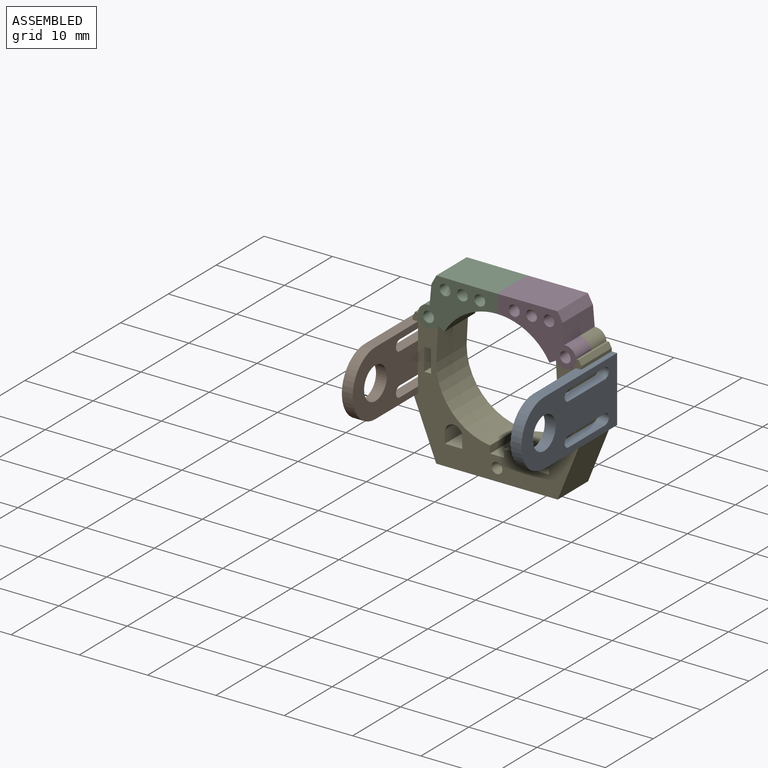
[diagram: assembled view]
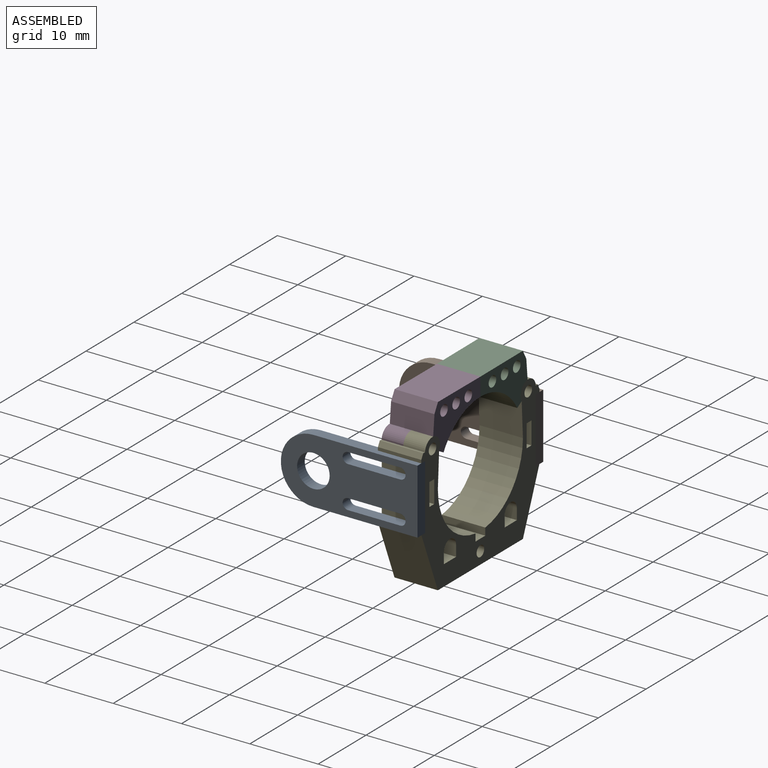
[diagram: assembled view, second angle]
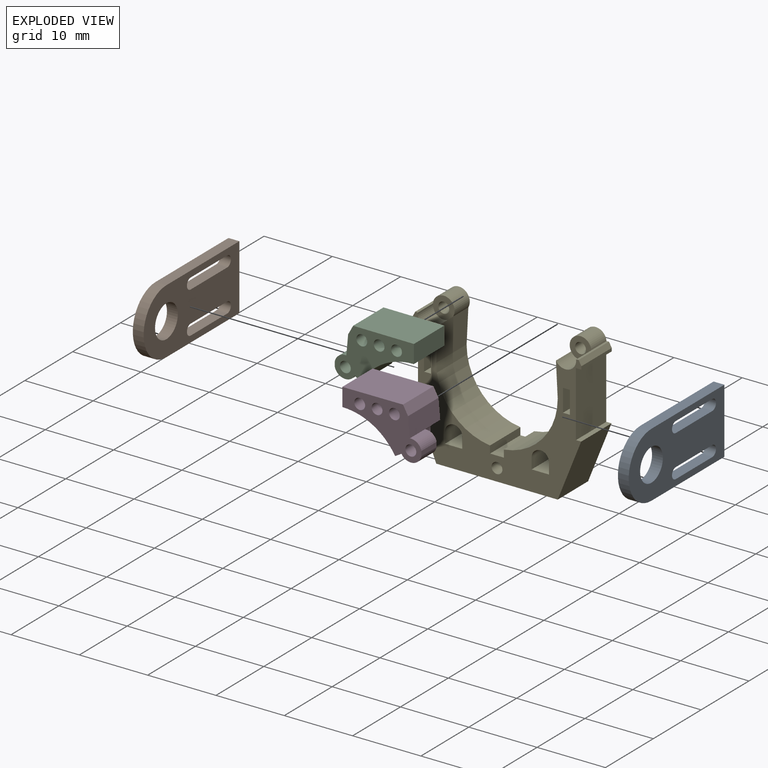
[diagram: exploded view]
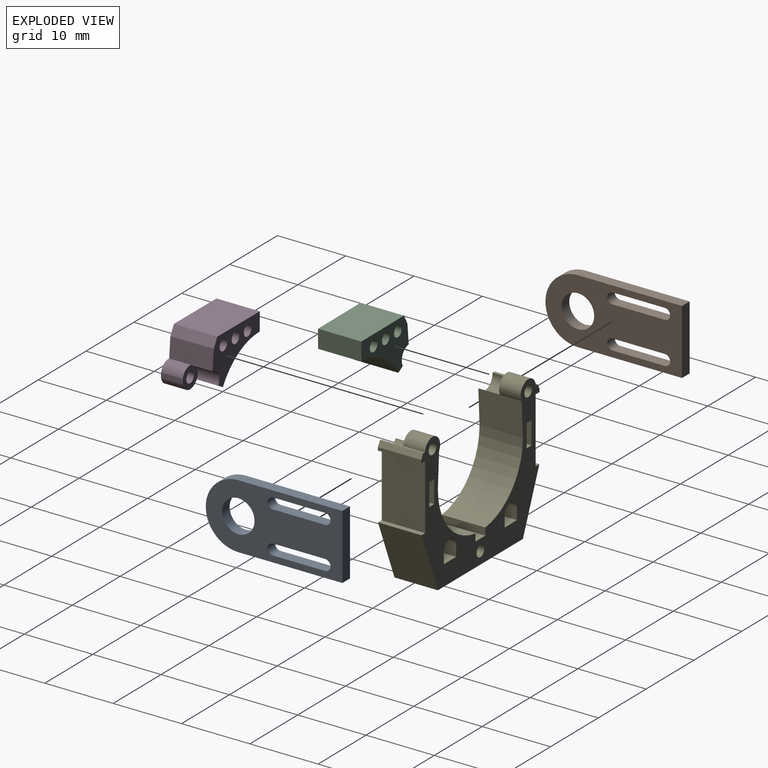
[diagram: exploded view, second angle]
ASSEMBLY  parts=5 mates=8
PART A: 15 faces, bbox 20x1.6x9.5 mm
  f0: cylinder r=0.79mm len=1.59mm, axis (0,1,0), area 4mm2, adj f1,f12,f13,f14
  f1: plane 7.62x1.59mm, normal (0,0,1), area 12.1mm2, adj f0,f2,f13,f14
  f2: cylinder r=0.79mm len=1.59mm, axis (0,1,0), area 4mm2, adj f1,f12,f13,f14
  f3: cylinder r=0.79mm len=1.59mm, axis (0,1,0), area 4mm2, adj f4,f9,f13,f14
  f4: plane 7.62x1.59mm, normal (0,0,1), area 12.1mm2, adj f3,f5,f13,f14
  f5: cylinder r=0.79mm len=1.59mm, axis (0,1,0), area 4mm2, adj f4,f9,f13,f14
  f6: plane 15.24x1.59mm, normal (0,0,-1), area 24.2mm2, adj f7,f11,f13,f14
  f7: cylinder r=4.76mm len=9.53mm, axis (0,1,0), area 23.8mm2, adj f6,f8,f13,f14
  f8: plane 15.24x1.59mm, normal (0,0,1), area 24.2mm2, adj f7,f11,f13,f14
  f9: plane 7.62x1.59mm, normal (0,0,-1), area 12.1mm2, adj f3,f5,f13,f14
  f10: cylinder r=2.38mm len=4.76mm, axis (0,1,0), area 23.8mm2, adj f13,f14
  f11: plane 9.53x1.59mm, normal (-1,0,0), area 15.1mm2, adj f6,f8,f13,f14
  f12: plane 7.62x1.59mm, normal (0,0,-1), area 12.1mm2, adj f0,f2,f13,f14
  f13: plane 20x9.53mm, normal (0,-1,0), area 134.8mm2, adj f0,f1,f2,f3,f4,f5,f6,f7
  f14: plane 20x9.53mm, normal (0,1,0), area 134.8mm2, adj f0,f1,f2,f3,f4,f5,f6,f7
PART B: same geometry as A
PART C: 17 faces, bbox 11.6x6.4x7.4 mm
  f0: plane 3.18x0.7mm, normal (-1,0,0), area 2.2mm2, adj f9,f12,f14,f15
  f1: cylinder r=0.79mm len=3.18mm, axis (0,1,0), area 15.8mm2, adj f14,f15
  f2: plane 9.87x7.11mm, normal (0,1,0), area 35mm2, adj f3,f4,f5,f6,f7,f8,f10,f11
  f3: plane 6.35x0.94mm, normal (-0.5,0,-0.87), area 6.9mm2, adj f2,f4,f12,f14,f16
  f4: cylinder r=8.89mm len=7.7mm, axis (0,1,0), area 59.1mm2, adj f2,f3,f5,f14
  f5: plane 6.35x2.67mm, normal (1,0,0), area 16.9mm2, adj f2,f4,f6,f14
  f6: plane 8.89x6.35mm, normal (0,0,1), area 56.5mm2, adj f2,f5,f7,f14
  f7: plane 6.35x1.34mm, normal (-0.88,0,0.48), area 9.7mm2, adj f2,f6,f8,f14
  f8: plane 6.35x2.86mm, normal (-1,0,0.09), area 18.2mm2, adj f2,f7,f9,f14,f16
  f9: cylinder r=1.59mm len=3.18mm, axis (0,1,0), area 7.2mm2, adj f0,f8,f14,f15
  f10: cylinder r=0.79mm len=6.35mm, axis (0,1,0), area 31.7mm2, adj f2,f14
  f11: cylinder r=0.79mm len=6.35mm, axis (0,1,0), area 31.7mm2, adj f2,f14
  f12: cylinder r=1.59mm len=3.18mm, axis (0,1,0), area 12.1mm2, adj f0,f3,f14,f15
  f13: cylinder r=0.79mm len=6.35mm, axis (0,1,0), area 31.7mm2, adj f2,f14
  f14: plane 11.56x7.37mm, normal (0,-1,0), area 41mm2, adj f0,f1,f3,f4,f5,f6,f7,f8
  f15: plane 3.18x3.14mm, normal (0,1,0), area 5.9mm2, adj f0,f1,f9,f12,f16
  f16: cylinder r=1.59mm len=3.18mm, axis (0,1,0), area 10.1mm2, adj f2,f3,f8,f15
PART D: 17 faces, bbox 11.6x6.4x7.4 mm
  f0: cylinder r=1.59mm len=3.18mm, axis (0,1,0), area 12.1mm2, adj f1,f5,f14,f16
  f1: plane 3.18x0.7mm, normal (1,0,0), area 2.2mm2, adj f0,f2,f14,f16
  f2: cylinder r=1.59mm len=3.18mm, axis (0,1,0), area 7.2mm2, adj f1,f6,f14,f16
  f3: cylinder r=0.79mm len=3.18mm, axis (0,1,0), area 15.8mm2, adj f14,f16
  f4: plane 9.87x7.11mm, normal (0,1,0), area 35mm2, adj f5,f6,f7,f8,f9,f10,f11,f12
  f5: plane 6.35x0.94mm, normal (0.5,0,-0.87), area 6.9mm2, adj f0,f4,f10,f14,f15
  f6: plane 6.35x2.86mm, normal (1,0,0.09), area 18.2mm2, adj f2,f4,f7,f14,f15
  f7: plane 6.35x1.34mm, normal (0.88,0,0.48), area 9.7mm2, adj f4,f6,f8,f14
  f8: plane 8.89x6.35mm, normal (0,0,1), area 56.5mm2, adj f4,f7,f9,f14
  f9: plane 6.35x2.67mm, normal (-1,0,0), area 16.9mm2, adj f4,f8,f10,f14
  f10: cylinder r=8.89mm len=7.7mm, axis (0,1,0), area 59.1mm2, adj f4,f5,f9,f14
  f11: cylinder r=0.79mm len=6.35mm, axis (0,1,0), area 31.7mm2, adj f4,f14
  f12: cylinder r=0.79mm len=6.35mm, axis (0,1,0), area 31.7mm2, adj f4,f14
  f13: cylinder r=0.79mm len=6.35mm, axis (0,1,0), area 31.7mm2, adj f4,f14
  f14: plane 11.56x7.37mm, normal (0,-1,0), area 41mm2, adj f0,f1,f2,f3,f5,f6,f7,f8
  f15: cylinder r=1.59mm len=3.18mm, axis (0,1,0), area 10.1mm2, adj f4,f5,f6,f16
  f16: plane 3.18x3.14mm, normal (0,1,0), area 5.9mm2, adj f0,f1,f2,f3,f15
PART E: 49 faces, bbox 24.7x6.4x20.7 mm
  f0: plane 24.7x19.29mm, normal (0,-1,0), area 170.4mm2, adj f5,f6,f7,f8,f9,f10,f11,f12
  f1: cylinder r=1.59mm len=3.18mm, axis (0,1,0), area 18mm2, adj f24,f25,f44,f48
  f2: cylinder r=1.59mm len=3.18mm, axis (0,1,0), area 18mm2, adj f31,f32,f44,f45
  f3: cylinder r=0.79mm len=3.18mm, axis (0,1,0), area 15.8mm2, adj f44,f48
  f4: cylinder r=0.79mm len=3.18mm, axis (0,1,0), area 15.8mm2, adj f44,f45
  f5: plane 6.35x1.6mm, normal (-1,0,0), area 10.2mm2, adj f0,f6,f38,f44
  f6: plane 6.35x2.54mm, normal (0,0,1), area 16.1mm2, adj f0,f5,f7,f44
  f7: plane 6.35x1.6mm, normal (1,0,0), area 10.2mm2, adj f0,f6,f38,f44
  f8: plane 6.35x1.02mm, normal (0,0,1), area 6.5mm2, adj f0,f9,f39,f44
  f9: plane 6.35x3.3mm, normal (1,0,0), area 21mm2, adj f0,f8,f10,f44
  f10: plane 6.35x1.02mm, normal (0,0,-1), area 6.5mm2, adj f0,f9,f39,f44
  f11: plane 6.35x1.02mm, normal (0,0,-1), area 6.5mm2, adj f0,f12,f41,f44
  f12: plane 6.35x3.3mm, normal (-1,0,0), area 21mm2, adj f0,f11,f13,f44
  f13: plane 6.35x1.02mm, normal (0,0,1), area 6.5mm2, adj f0,f12,f41,f44
  f14: plane 6.35x1.6mm, normal (-1,0,0), area 10.2mm2, adj f0,f15,f42,f44
  f15: plane 6.35x2.54mm, normal (0,0,1), area 16.1mm2, adj f0,f14,f16,f44
  f16: plane 6.35x1.6mm, normal (1,0,0), area 10.2mm2, adj f0,f15,f42,f44
  f17: plane 17.78x6.35mm, normal (0,0,-1), area 112.9mm2, adj f0,f18,f43,f44
  f18: plane 8.58x6.35mm, normal (0.93,0,-0.37), area 58.7mm2, adj f0,f17,f19,f44
  f19: plane 6.35x0.76mm, normal (0,0,1), area 4.8mm2, adj f0,f18,f20,f44
  f20: plane 9.53x6.35mm, normal (1,0,0), area 60.5mm2, adj f0,f19,f21,f44
  f21: plane 6.35x0.79mm, normal (0,0,-1), area 5mm2, adj f0,f20,f22,f44
  f22: plane 6.35x0.46mm, normal (1,0,0), area 2.9mm2, adj f0,f21,f23,f44
  f23: plane 6.35x0.73mm, normal (0.88,0,0.48), area 5.3mm2, adj f0,f22,f24,f44
  f24: plane 6.35x0.36mm, normal (-0.09,0,1), area 2.3mm2, adj f0,f1,f23,f44,f47
  f25: plane 6.35x4.98mm, normal (-1,0,-0.05), area 31.7mm2, adj f0,f1,f26,f44,f47
  f26: cylinder r=8.89mm len=8.83mm, axis (0,1,0), area 82.2mm2, adj f0,f25,f27,f44
  f27: plane 6.35x1.07mm, normal (-1,0,0), area 6.8mm2, adj f0,f26,f28,f44
  f28: plane 6.35x2.03mm, normal (0,0,1), area 12.9mm2, adj f0,f27,f29,f44
  f29: plane 6.35x1.07mm, normal (1,0,0), area 6.8mm2, adj f0,f28,f30,f44
  f30: cylinder r=8.89mm len=8.83mm, axis (0,1,0), area 82.2mm2, adj f0,f29,f31,f44
  f31: plane 6.35x4.98mm, normal (1,0,-0.05), area 31.7mm2, adj f0,f2,f30,f44,f46
  f32: plane 6.35x0.36mm, normal (0.09,0,1), area 2.3mm2, adj f0,f2,f33,f44,f46
  f33: plane 6.35x0.73mm, normal (-0.88,0,0.48), area 5.3mm2, adj f0,f32,f34,f44
  f34: plane 6.35x0.46mm, normal (-1,0,0), area 2.9mm2, adj f0,f33,f35,f44
  f35: plane 6.35x0.79mm, normal (0,0,-1), area 5mm2, adj f0,f34,f36,f44
  f36: plane 9.53x6.35mm, normal (-1,0,0), area 60.5mm2, adj f0,f35,f37,f44
  f37: plane 6.35x0.76mm, normal (0,0,1), area 4.8mm2, adj f0,f36,f43,f44
  f38: cylinder r=1.27mm len=6.35mm, axis (0,1,0), area 25.3mm2, adj f0,f5,f7,f44
  f39: plane 6.35x3.3mm, normal (-1,0,0), area 21mm2, adj f0,f8,f10,f44
  f40: cylinder r=0.79mm len=6.35mm, axis (0,1,0), area 31.7mm2, adj f0,f44
  f41: plane 6.35x3.3mm, normal (1,0,0), area 21mm2, adj f0,f11,f13,f44
  f42: cylinder r=1.27mm len=6.35mm, axis (0,1,0), area 25.3mm2, adj f0,f14,f16,f44
  f43: plane 8.58x6.35mm, normal (-0.93,0,-0.37), area 58.7mm2, adj f0,f17,f37,f44
  f44: plane 24.7x20.71mm, normal (0,1,0), area 182.2mm2, adj f1,f2,f3,f4,f5,f6,f7,f8
  f45: plane 3.18x3.18mm, normal (0,-1,0), area 5.9mm2, adj f2,f4,f46
  f46: cylinder r=1.59mm len=3.18mm, axis (0,-1,0), area 13.6mm2, adj f0,f31,f32,f45
  f47: cylinder r=1.59mm len=3.18mm, axis (0,-1,0), area 13.6mm2, adj f0,f24,f25,f48
  f48: plane 3.18x3.18mm, normal (0,-1,0), area 5.9mm2, adj f1,f3,f47
PLACE A rot(axis=(0.71,-0.71,0),180deg) t=(-44.86,-219.61,34.59)mm
PLACE B rot(axis=(0,0,-1),90deg) t=(-67.97,-219.61,33.78)mm
PLACE C rot(axis=(0,1,0),0.2deg) t=(42.92,-45.75,33.76)mm
PLACE D rot(axis=(0,-1,0),0.2deg) t=(42.96,-45.75,34.51)mm
PLACE E t=(42.94,-45.75,34.18)mm fixed
MATE planar A.f6 <-> E.f21  axis (0,0,1) through (-44.06,-53.37,38.95)mm
MATE planar B.f14 <-> E.f36  axis (1,0,0) through (-67.97,-55.18,34.18)mm
MATE planar A.f11 <-> E.f44  axis (0,1,0) through (-44.06,-45.75,34.18)mm
MATE planar B.f8 <-> E.f35  axis (0,0,1) through (-68.76,-53.37,38.95)mm
MATE revolute D.f0 <-> E.f1  axis (0,1,0) through (-46.41,-48.92,39.96)mm
MATE planar B.f11 <-> E.f44  axis (0,1,0) through (-68.76,-45.75,34.18)mm
MATE revolute C.f1 <-> E.f2  axis (0,1,0) through (-66.42,-48.92,39.96)mm
MATE planar A.f14 <-> E.f20  axis (-1,0,0) through (-44.86,-55.18,34.18)mm
